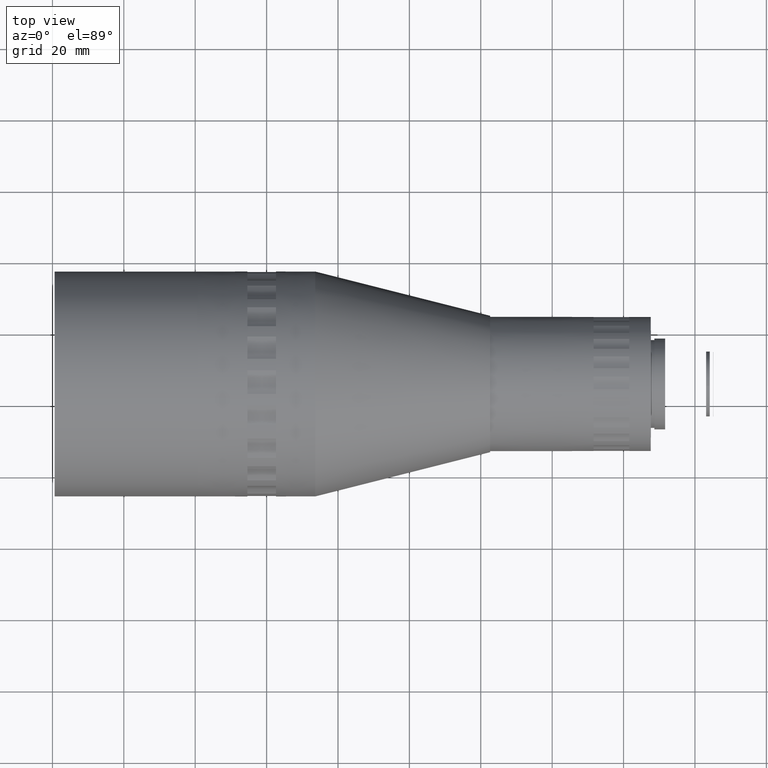
[diagram: clean part render]
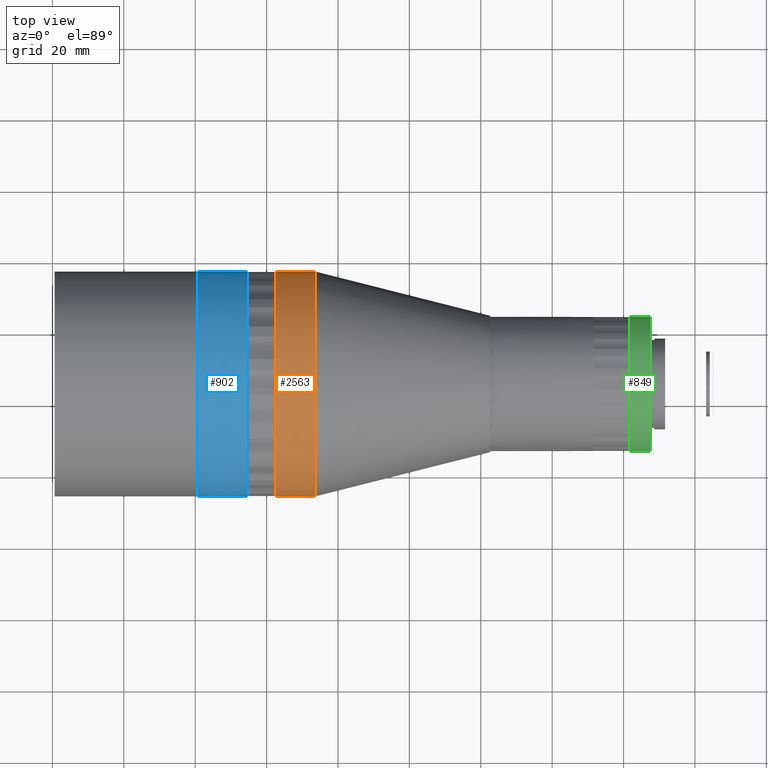
[diagram: same view with three faces highlighted in distinct colors, each labeled with its STEP entity id]
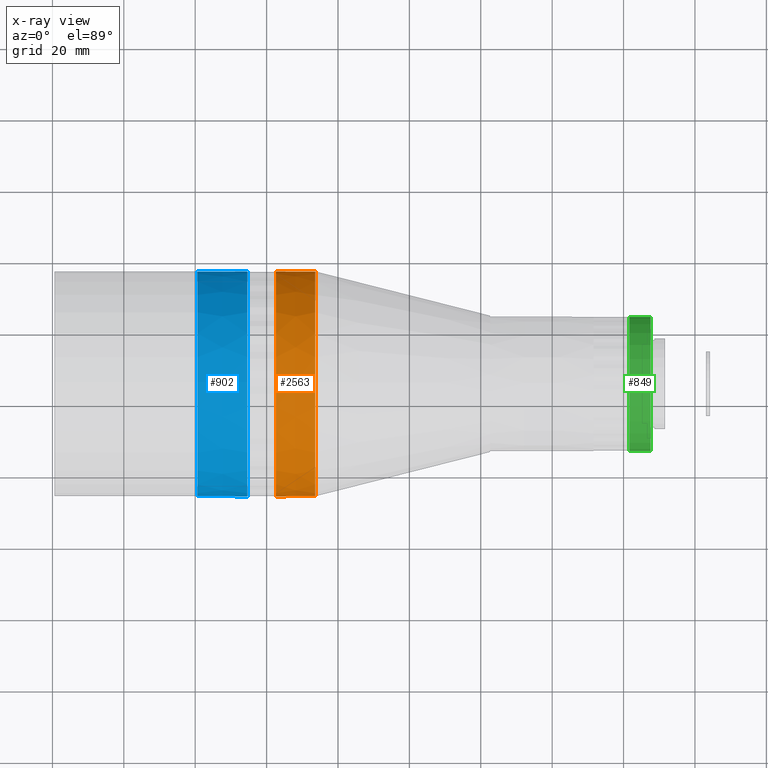
[diagram: x-ray of the same camera — body ghosted, the three highlighted faces saturated]
A machine part, top view with three faces highlighted in distinct colors.
The next image is the same camera in x-ray (body ghosted, the three faces saturated) — at least one of them is partly hidden behind the body in this view.
Their STEP definitions:

[orange] entity #2563 — the highlighted conical surface has half-angle 0.025 deg.
#78 = VERTEX_POINT ( 'NONE', #2239 ) ;
#201 = ORIENTED_EDGE ( 'NONE', *, *, #881, .F. ) ;
#240 = DIRECTION ( 'NONE',  ( 1.238899830359085448E-16, -1.000000000000000000, 0.000000000000000000 ) ) ;
#296 = FACE_OUTER_BOUND ( 'NONE', #851, .T. ) ;
#339 = CIRCLE ( 'NONE', #1371, 31.49999999999999289 ) ;
#425 = EDGE_LOOP ( 'NONE', ( #3925 ) ) ;
#470 = DIRECTION ( 'NONE',  ( 1.238899830359085448E-16, -1.000000000000000000, 0.000000000000000000 ) ) ;
#628 = DIRECTION ( 'NONE',  ( -1.000000000000000000, -1.226679102604723662E-16, -0.000000000000000000 ) ) ;
#851 = EDGE_LOOP ( 'NONE', ( #201 ) ) ;
#881 = EDGE_CURVE ( 'NONE', #78, #78, #4312, .T. ) ;
#1010 = FACE_BOUND ( 'NONE', #425, .T. ) ;
#1371 = AXIS2_PLACEMENT_3D ( 'NONE', #4449, #628, #1573 ) ;
#1573 = DIRECTION ( 'NONE',  ( 1.101411730778925417E-16, -1.000000000000000000, 0.000000000000000000 ) ) ;
#1877 = CARTESIAN_POINT ( 'NONE',  ( 2.630936219552459931, 5.711987127917007356, -0.6039616615827261281 ) ) ;
#2073 = AXIS2_PLACEMENT_3D ( 'NONE', #1877, #2615, #470 ) ;
#2239 = CARTESIAN_POINT ( 'NONE',  ( 2.630936219552463928, -25.79280224489713902, -0.6039616615827261281 ) ) ;
#2415 = EDGE_CURVE ( 'NONE', #3924, #3924, #339, .T. ) ;
#2420 = CONICAL_SURFACE ( 'NONE', #2796, 31.50478937281414460, 0.0004353975010470727204 ) ;
#2441 = CARTESIAN_POINT ( 'NONE',  ( 2.630936219552459931, 5.711987127917007356, -0.6039616615827261281 ) ) ;
#2563 = ADVANCED_FACE ( 'NONE', ( #1010, #296 ), #2420, .T. ) ;
#2615 = DIRECTION ( 'NONE',  ( -1.000000000000000000, -1.226679102604723662E-16, -0.000000000000000000 ) ) ;
#2796 = AXIS2_PLACEMENT_3D ( 'NONE', #2441, #3869, #240 ) ;
#3582 = CARTESIAN_POINT ( 'NONE',  ( 13.63093621955187729, -25.78801287208298376, -0.6039616615827261281 ) ) ;
#3869 = DIRECTION ( 'NONE',  ( -1.000000000000000000, -1.226679102604723662E-16, -0.000000000000000000 ) ) ;
#3924 = VERTEX_POINT ( 'NONE', #3582 ) ;
#3925 = ORIENTED_EDGE ( 'NONE', *, *, #2415, .T. ) ;
#4312 = CIRCLE ( 'NONE', #2073, 31.50478937281414460 ) ;
#4449 = CARTESIAN_POINT ( 'NONE',  ( 13.63093621955187373, 5.711987127917008245, -0.6039616615827261281 ) ) ;

[blue] entity #902 — the highlighted conical surface has half-angle 0.02 deg.
#54 = VERTEX_POINT ( 'NONE', #3667 ) ;
#109 = CIRCLE ( 'NONE', #3911, 31.49999999999999289 ) ;
#118 = VERTEX_POINT ( 'NONE', #2963 ) ;
#416 = ORIENTED_EDGE ( 'NONE', *, *, #1937, .F. ) ;
#664 = DIRECTION ( 'NONE',  ( 1.101244293652520398E-16, -1.000000000000000000, 0.000000000000000000 ) ) ;
#691 = EDGE_CURVE ( 'NONE', #54, #54, #1312, .T. ) ;
#902 = ADVANCED_FACE ( 'NONE', ( #1257, #4370 ), #1025, .T. ) ;
#1025 = CONICAL_SURFACE ( 'NONE', #4079, 31.49999999999999289, 0.0003420980448083855074 ) ;
#1257 = FACE_OUTER_BOUND ( 'NONE', #2394, .T. ) ;
#1312 = CIRCLE ( 'NONE', #2814, 31.50478937281414460 ) ;
#1579 = CARTESIAN_POINT ( 'NONE',  ( -19.36906378044784560, 5.711987127917004692, -0.6039616615827261281 ) ) ;
#1923 = DIRECTION ( 'NONE',  ( 1.000000000000000000, 1.226679102604723662E-16, 0.000000000000000000 ) ) ;
#1937 = EDGE_CURVE ( 'NONE', #118, #118, #109, .T. ) ;
#2394 = EDGE_LOOP ( 'NONE', ( #3166 ) ) ;
#2598 = CARTESIAN_POINT ( 'NONE',  ( -19.36906378044784560, 5.711987127917004692, -0.6039616615827261281 ) ) ;
#2814 = AXIS2_PLACEMENT_3D ( 'NONE', #4547, #4201, #664 ) ;
#2963 = CARTESIAN_POINT ( 'NONE',  ( -19.36906378044784205, -25.78801287208298731, -0.6039616615827261281 ) ) ;
#3166 = ORIENTED_EDGE ( 'NONE', *, *, #691, .T. ) ;
#3490 = EDGE_LOOP ( 'NONE', ( #416 ) ) ;
#3667 = CARTESIAN_POINT ( 'NONE',  ( -5.369063780447536516, -25.79280224489714257, -0.6039616615827261281 ) ) ;
#3911 = AXIS2_PLACEMENT_3D ( 'NONE', #1579, #3974, #4526 ) ;
#3974 = DIRECTION ( 'NONE',  ( -1.000000000000000000, -1.226679102604723662E-16, -0.000000000000000000 ) ) ;
#4022 = DIRECTION ( 'NONE',  ( -1.101411730778925417E-16, 1.000000000000000000, 0.000000000000000000 ) ) ;
#4079 = AXIS2_PLACEMENT_3D ( 'NONE', #2598, #1923, #4022 ) ;
#4201 = DIRECTION ( 'NONE',  ( -1.000000000000000000, -1.226679102604723662E-16, -0.000000000000000000 ) ) ;
#4370 = FACE_BOUND ( 'NONE', #3490, .T. ) ;
#4526 = DIRECTION ( 'NONE',  ( 1.101411730778925417E-16, -1.000000000000000000, 0.000000000000000000 ) ) ;
#4547 = CARTESIAN_POINT ( 'NONE',  ( -5.369063780447540069, 5.711987127917006468, -0.6039616615827261281 ) ) ;

[green] entity #849 — the highlighted cylindrical surface (bore or boss wall) has radius 18.7874 mm, axis along (-1, -0, -0).
#130 = AXIS2_PLACEMENT_3D ( 'NONE', #2550, #2506, #3719 ) ;
#204 = EDGE_LOOP ( 'NONE', ( #2835 ) ) ;
#716 = FACE_OUTER_BOUND ( 'NONE', #4236, .T. ) ;
#849 = ADVANCED_FACE ( 'NONE', ( #3606, #716 ), #1079, .T. ) ;
#921 = DIRECTION ( 'NONE',  ( 0.000000000000000000, -1.000000000000000000, 0.000000000000000000 ) ) ;
#938 = CIRCLE ( 'NONE', #2583, 18.78735802570612989 ) ;
#1061 = CARTESIAN_POINT ( 'NONE',  ( 107.6073099950775998, 5.711987127917020679, -0.6039616615827261281 ) ) ;
#1079 = CYLINDRICAL_SURFACE ( 'NONE', #130, 18.78735802570612989 ) ;
#1196 = ORIENTED_EDGE ( 'NONE', *, *, #2929, .F. ) ;
#1456 = AXIS2_PLACEMENT_3D ( 'NONE', #3377, #1537, #921 ) ;
#1537 = DIRECTION ( 'NONE',  ( -1.000000000000000000, -1.226679102604723662E-16, -0.000000000000000000 ) ) ;
#1648 = VERTEX_POINT ( 'NONE', #3070 ) ;
#1792 = DIRECTION ( 'NONE',  ( -1.000000000000000000, -1.226679102604723662E-16, -0.000000000000000000 ) ) ;
#1935 = VERTEX_POINT ( 'NONE', #2656 ) ;
#2506 = DIRECTION ( 'NONE',  ( -1.000000000000000000, -1.226679102604723662E-16, -0.000000000000000000 ) ) ;
#2550 = CARTESIAN_POINT ( 'NONE',  ( -59.36906378044780297, 5.711987127917000251, -0.6039616615827261281 ) ) ;
#2583 = AXIS2_PLACEMENT_3D ( 'NONE', #1061, #1792, #3214 ) ;
#2656 = CARTESIAN_POINT ( 'NONE',  ( 107.6073099950775998, -13.07537089778910833, -0.6039616615827261281 ) ) ;
#2835 = ORIENTED_EDGE ( 'NONE', *, *, #4071, .T. ) ;
#2929 = EDGE_CURVE ( 'NONE', #1648, #1648, #3548, .T. ) ;
#3070 = CARTESIAN_POINT ( 'NONE',  ( 101.6073099950780119, -13.07537089778911010, -0.6039616615827261281 ) ) ;
#3214 = DIRECTION ( 'NONE',  ( 0.000000000000000000, -1.000000000000000000, 0.000000000000000000 ) ) ;
#3377 = CARTESIAN_POINT ( 'NONE',  ( 101.6073099950780119, 5.711987127917019791, -0.6039616615827261281 ) ) ;
#3548 = CIRCLE ( 'NONE', #1456, 18.78735802570612989 ) ;
#3606 = FACE_OUTER_BOUND ( 'NONE', #204, .T. ) ;
#3719 = DIRECTION ( 'NONE',  ( 0.000000000000000000, -1.000000000000000000, 0.000000000000000000 ) ) ;
#4071 = EDGE_CURVE ( 'NONE', #1935, #1935, #938, .T. ) ;
#4236 = EDGE_LOOP ( 'NONE', ( #1196 ) ) ;